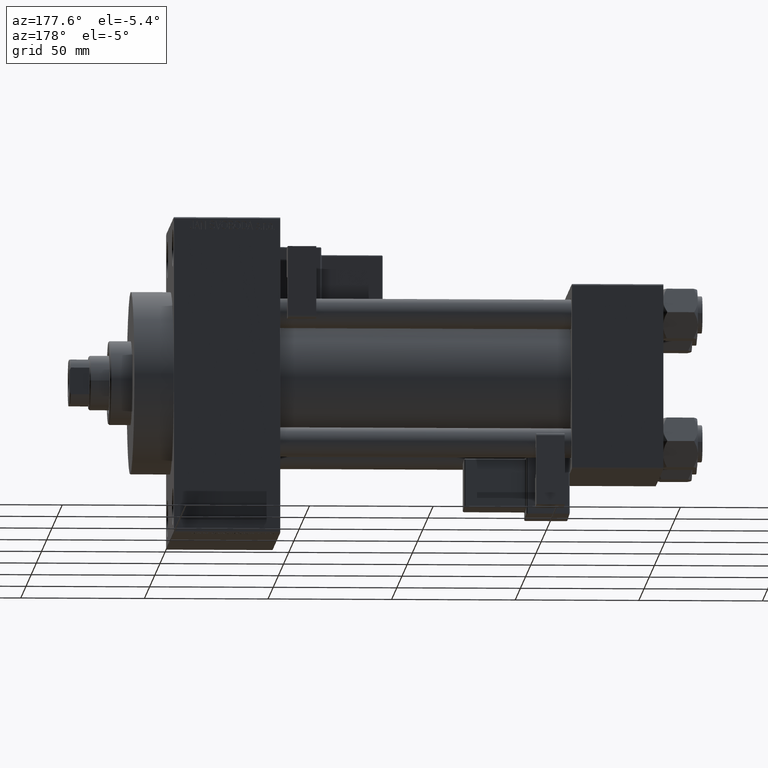
[diagram: clean part render]
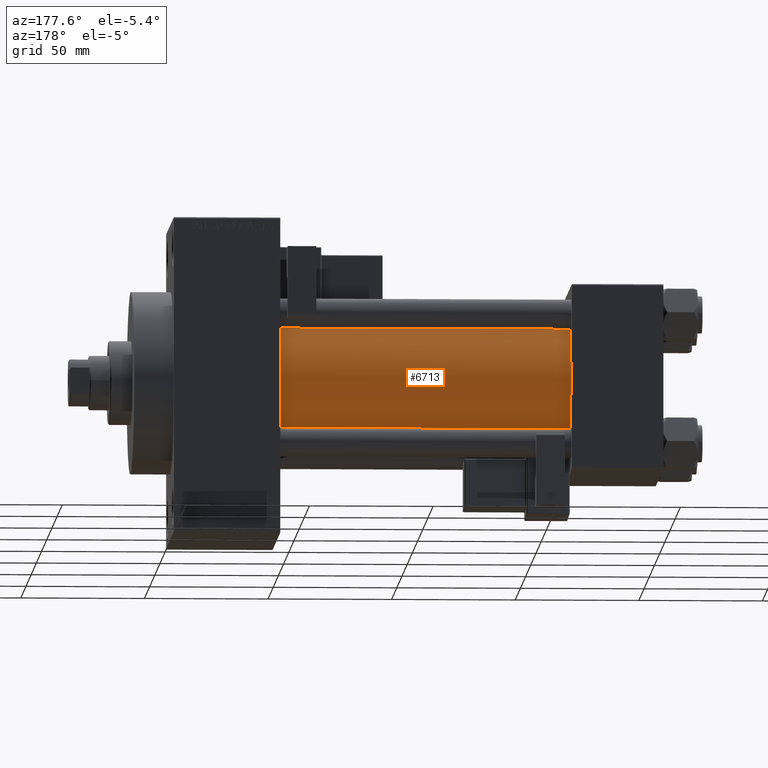
[diagram: same view with one face highlighted and labeled with its STEP entity id]
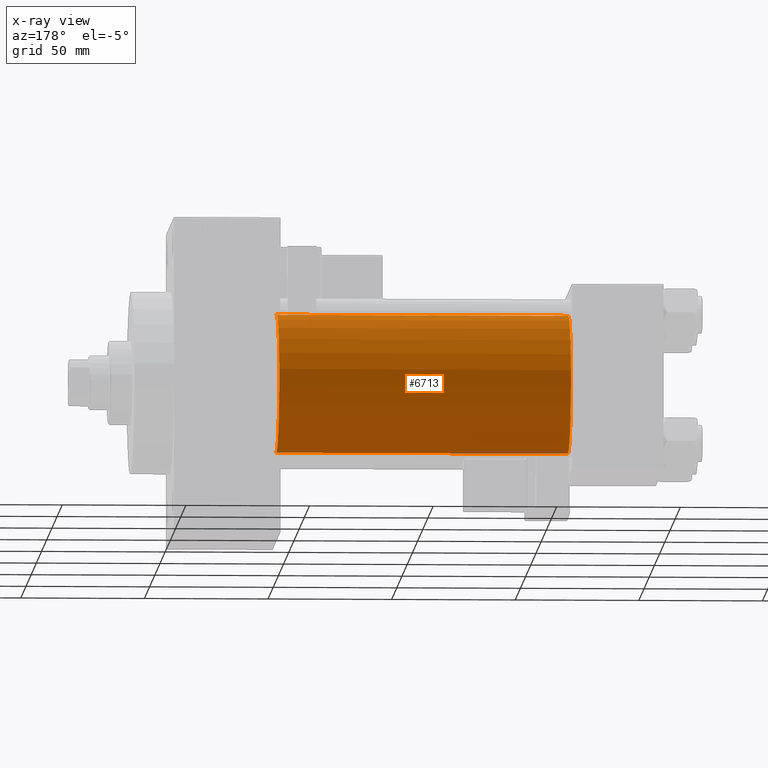
[diagram: x-ray of the same camera — body ghosted, the highlighted face saturated]
A machine part, auxiliary view. The second image highlights one B-rep face of the part: STEP entity #6713.
The next image is the same camera in x-ray: the body ghosted, the highlighted face saturated — about 0% of this face is hidden behind the body in this view.
In plain terms, the highlighted cylindrical surface (partial cylindrical patch) has radius 28 mm, axis along (-1, -0, -0).
Its self-contained STEP definition (entity closure, byte-faithful):
#2687 = VERTEX_POINT ( 'NONE', #6957 ) ;
#3489 = CARTESIAN_POINT ( 'NONE',  ( 155.0000000000000000, -2.602085213965210642E-15, 0.000000000000000000 ) ) ;
#5547 = CARTESIAN_POINT ( 'NONE',  ( 37.00000000000000711, -2.602085213965210642E-15, 0.000000000000000000 ) ) ;
#6713 = ADVANCED_FACE ( 'NONE', ( #45215 ), #29460, .T. ) ;
#6957 = CARTESIAN_POINT ( 'NONE',  ( 37.00000000000000711, -2.602085213965210642E-15, 28.00000000000000000 ) ) ;
#9052 = DIRECTION ( 'NONE',  ( 0.000000000000000000, 0.000000000000000000, 1.000000000000000000 ) ) ;
#10018 = LINE ( 'NONE', #39769, #32333 ) ;
#10069 = CARTESIAN_POINT ( 'NONE',  ( 155.0000000000000000, -2.602085213965210642E-15, 28.00000000000000000 ) ) ;
#10158 = ORIENTED_EDGE ( 'NONE', *, *, #24896, .F. ) ;
#10492 = DIRECTION ( 'NONE',  ( -1.000000000000000000, -0.000000000000000000, -0.000000000000000000 ) ) ;
#11543 = ORIENTED_EDGE ( 'NONE', *, *, #23089, .T. ) ;
#11784 = CIRCLE ( 'NONE', #40485, 28.00000000000000000 ) ;
#11853 = CIRCLE ( 'NONE', #39770, 28.00000000000000000 ) ;
#13259 = VERTEX_POINT ( 'NONE', #27817 ) ;
#15479 = EDGE_CURVE ( 'NONE', #26176, #2687, #10018, .T. ) ;
#16004 = LINE ( 'NONE', #41994, #24689 ) ;
#16825 = ORIENTED_EDGE ( 'NONE', *, *, #15479, .F. ) ;
#20766 = DIRECTION ( 'NONE',  ( 1.000000000000000000, -0.000000000000000000, 0.000000000000000000 ) ) ;
#23068 = CARTESIAN_POINT ( 'NONE',  ( 155.0000000000000000, -2.602085213965210642E-15, 0.000000000000000000 ) ) ;
#23089 = EDGE_CURVE ( 'NONE', #13259, #2687, #11784, .T. ) ;
#23316 = DIRECTION ( 'NONE',  ( 0.000000000000000000, 0.000000000000000000, -1.000000000000000000 ) ) ;
#23979 = CARTESIAN_POINT ( 'NONE',  ( 155.0000000000000000, 8.269258236473784371E-16, -28.00000000000000000 ) ) ;
#24689 = VECTOR ( 'NONE', #26244, 1000.000000000000000 ) ;
#24896 = EDGE_CURVE ( 'NONE', #48999, #26176, #11853, .T. ) ;
#26176 = VERTEX_POINT ( 'NONE', #10069 ) ;
#26244 = DIRECTION ( 'NONE',  ( -1.000000000000000000, -0.000000000000000000, -0.000000000000000000 ) ) ;
#27817 = CARTESIAN_POINT ( 'NONE',  ( 37.00000000000000711, 8.269258236473784371E-16, -28.00000000000000000 ) ) ;
#29460 = CYLINDRICAL_SURFACE ( 'NONE', #30613, 28.00000000000000000 ) ;
#30613 = AXIS2_PLACEMENT_3D ( 'NONE', #3489, #10492, #44485 ) ;
#32333 = VECTOR ( 'NONE', #36009, 1000.000000000000000 ) ;
#32362 = EDGE_CURVE ( 'NONE', #48999, #13259, #16004, .T. ) ;
#34289 = ORIENTED_EDGE ( 'NONE', *, *, #32362, .T. ) ;
#36009 = DIRECTION ( 'NONE',  ( -1.000000000000000000, -0.000000000000000000, -0.000000000000000000 ) ) ;
#39769 = CARTESIAN_POINT ( 'NONE',  ( 155.0000000000000000, -2.602085213965210642E-15, 28.00000000000000000 ) ) ;
#39770 = AXIS2_PLACEMENT_3D ( 'NONE', #23068, #45820, #23316 ) ;
#40485 = AXIS2_PLACEMENT_3D ( 'NONE', #5547, #20766, #9052 ) ;
#41994 = CARTESIAN_POINT ( 'NONE',  ( 155.0000000000000000, 8.269258236473784371E-16, -28.00000000000000000 ) ) ;
#44485 = DIRECTION ( 'NONE',  ( 0.000000000000000000, 0.000000000000000000, 1.000000000000000000 ) ) ;
#44762 = EDGE_LOOP ( 'NONE', ( #10158, #34289, #11543, #16825 ) ) ;
#45215 = FACE_OUTER_BOUND ( 'NONE', #44762, .T. ) ;
#45820 = DIRECTION ( 'NONE',  ( 1.000000000000000000, 0.000000000000000000, 0.000000000000000000 ) ) ;
#48999 = VERTEX_POINT ( 'NONE', #23979 ) ;